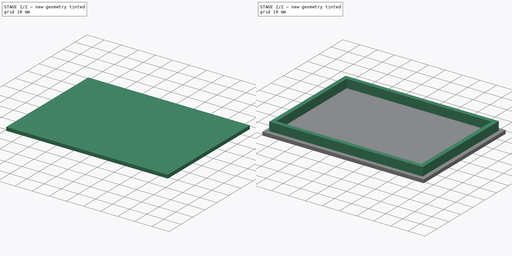
[diagram: build sequence overview — one tinted view per stage of 2, left to right]
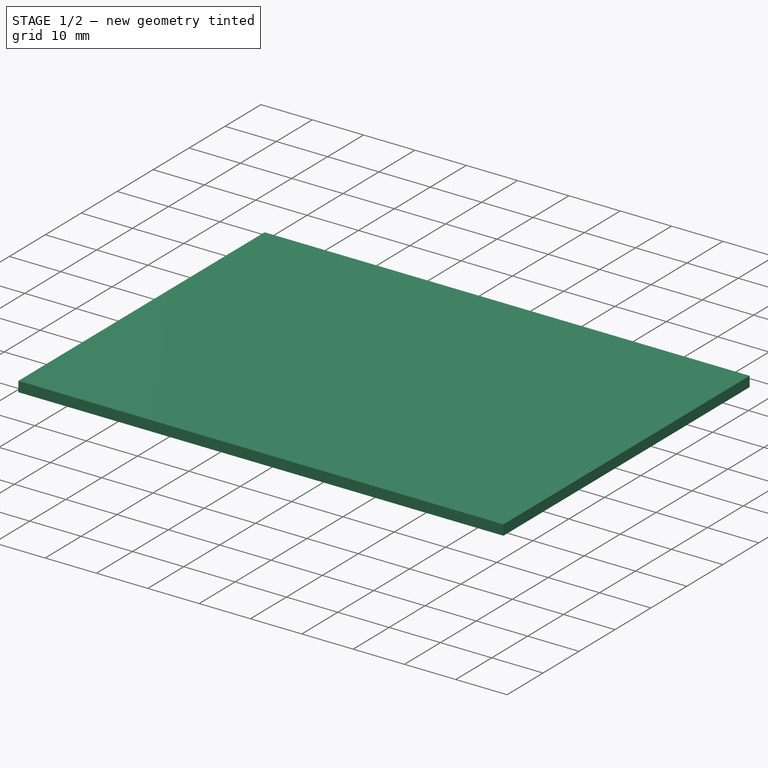
[diagram: stage 1 of 2 — iso view after this stage's code; geometry added in this stage tinted green]
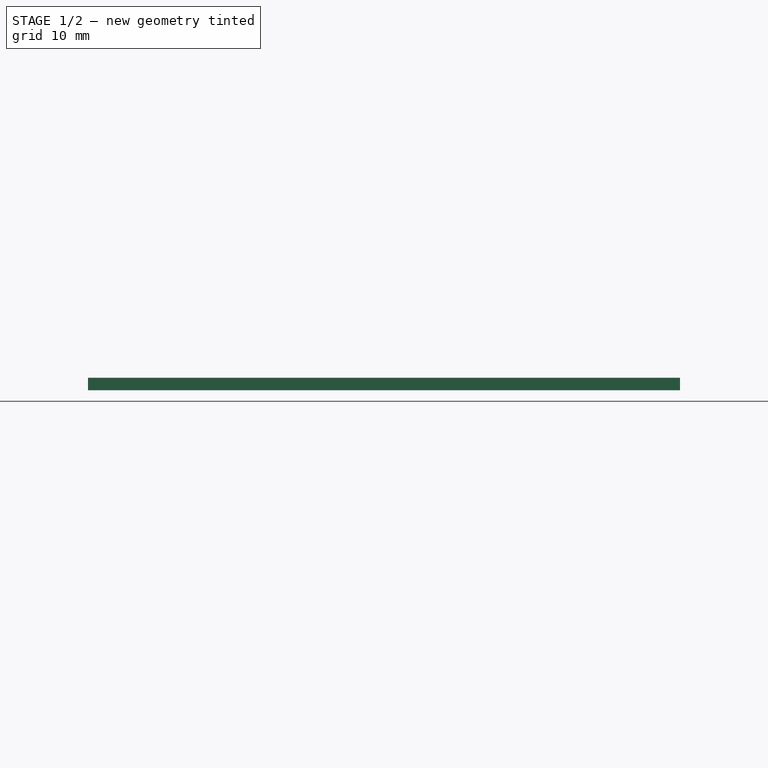
[diagram: stage 1 of 2 — front view after this stage's code; geometry added in this stage tinted green]
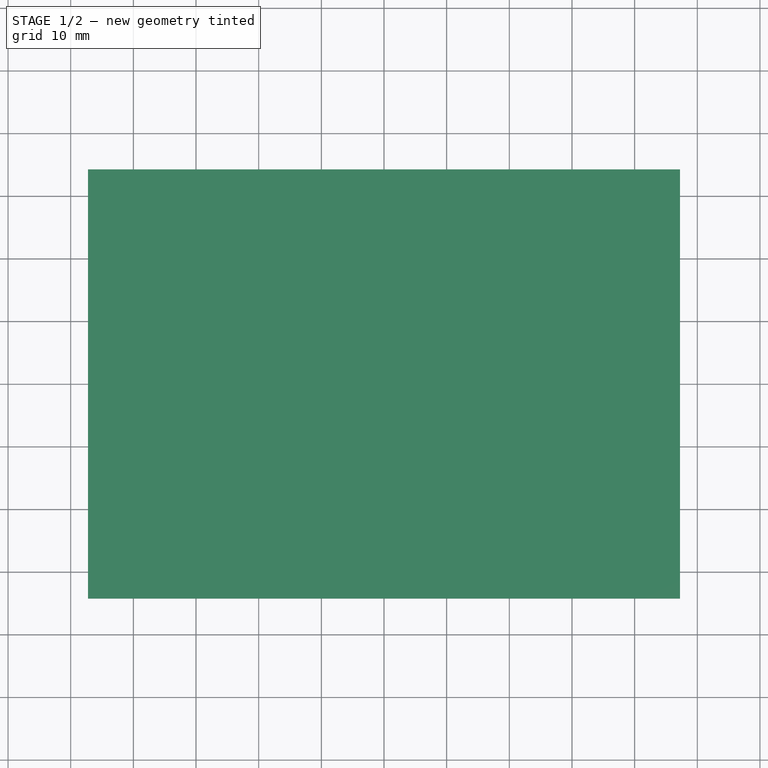
[diagram: stage 1 of 2 — top view after this stage's code; geometry added in this stage tinted green]
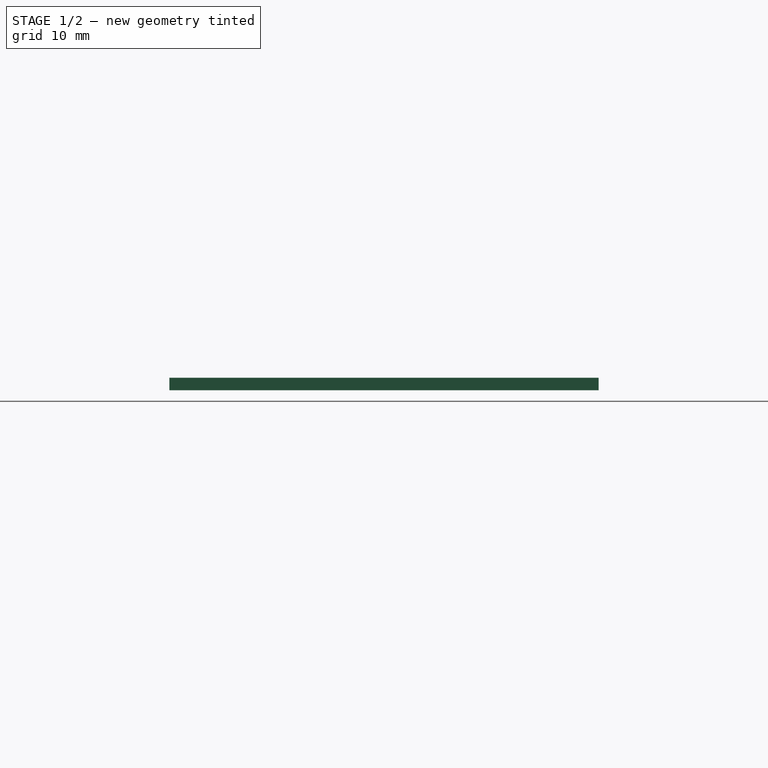
[diagram: stage 1 of 2 — right view after this stage's code; geometry added in this stage tinted green]
FCSTD DOCUMENT  (FreeCAD 0.19R24267 +99 (Git))
Label: V3-lid
License: All rights reserved
LicenseURL: http://en.wikipedia.org/wiki/All_rights_reserved
objects: Sketcher::SketchObject×2, PartDesign::Pad×2, PartDesign::Body×1
note: 7 computed .brp shape members not serialized (recipe doc carries the construction recipe); baked Part::Feature solids carry a one-line shape summary decoded from their .brp

FEATURE [Sketcher::SketchObject] Sketch  label="base_plate"
  FullyConstrained = true
  MapMode = 5
  Support = -> [XY_Plane]
  sketch-geometry (4):
    g0: LineSegment StartX=-47.25 StartY=34.25 StartZ=0 EndX=47.25 EndY=34.25 EndZ=0
    g1: LineSegment StartX=47.25 StartY=34.25 StartZ=0 EndX=47.25 EndY=-34.25 EndZ=0
    g2: LineSegment StartX=47.25 StartY=-34.25 StartZ=0 EndX=-47.25 EndY=-34.25 EndZ=0
    g3: LineSegment StartX=-47.25 StartY=-34.25 StartZ=0 EndX=-47.25 EndY=34.25 EndZ=0
  constraints (10):
    c: Coincident(g0,g1)
    c: Coincident(g1,g2)
    c: Coincident(g2,g3)
    c: Coincident(g3,g0)
    c: Horizontal(g2)
    c: Vertical(g1)
    c: Symmetric(g0,g2,g-1)
    c: Symmetric(g0,g0,g-2)
    c: DistanceX(g0,g0) = 94.5
    c: DistanceY(g3,g3) = 68.5
FEATURE [PartDesign::Pad] Pad
  Direction = (1,1,1)
  Length = 2
  Length2 = 100
  Profile = -> Sketch
  Type = 0
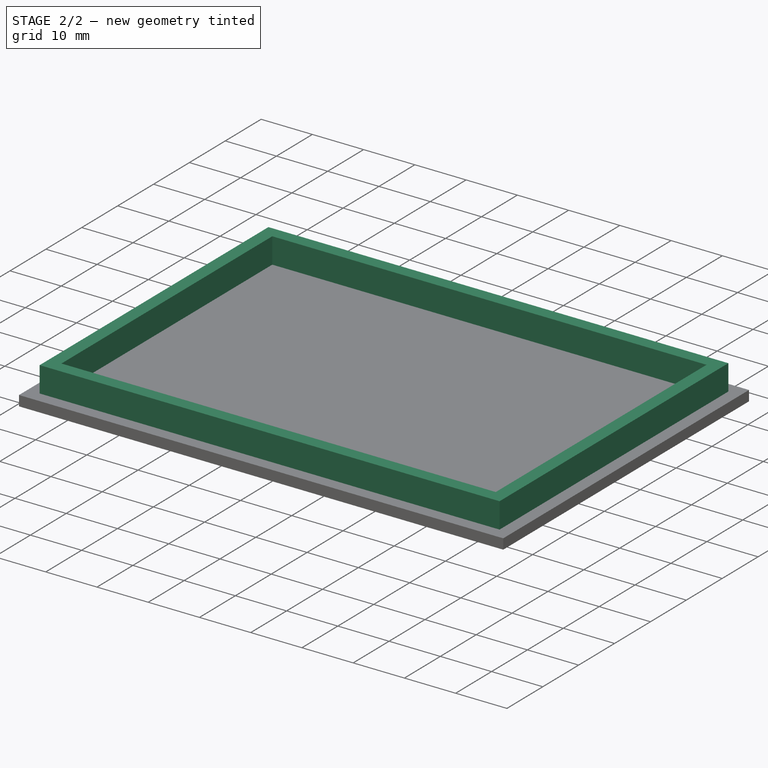
[diagram: stage 2 of 2 — iso view after this stage's code; geometry added in this stage tinted green]
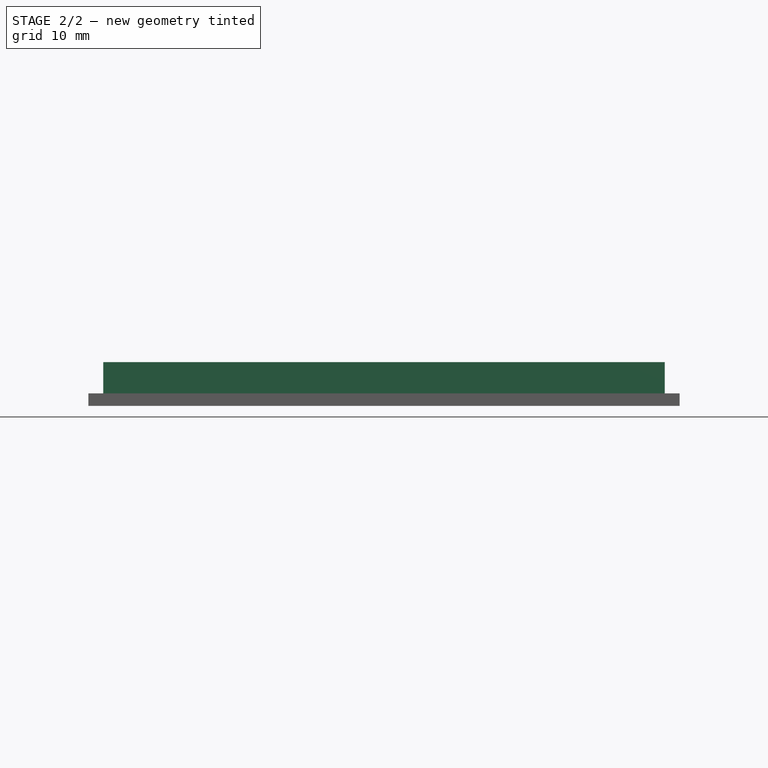
[diagram: stage 2 of 2 — front view after this stage's code; geometry added in this stage tinted green]
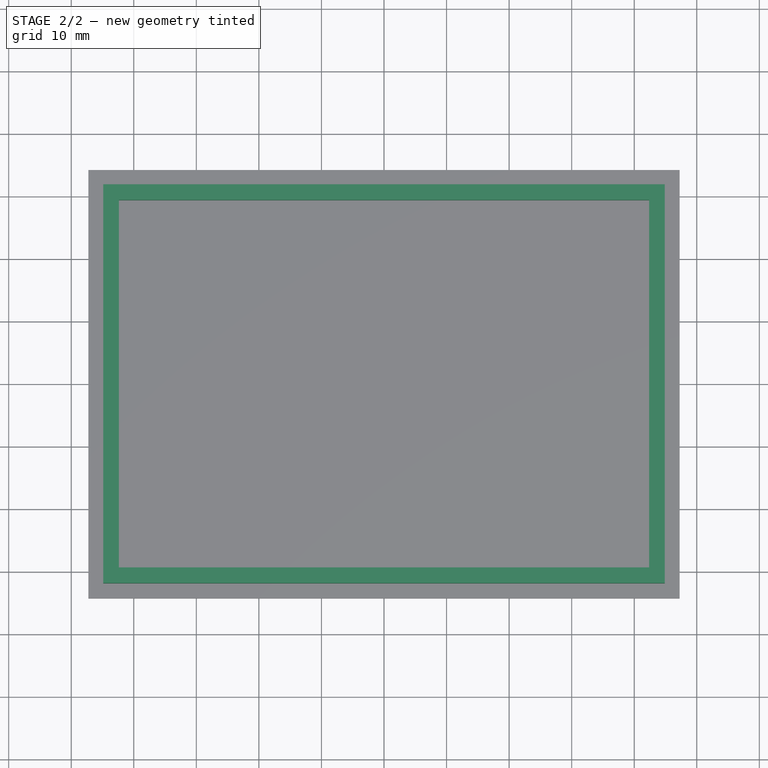
[diagram: stage 2 of 2 — top view after this stage's code; geometry added in this stage tinted green]
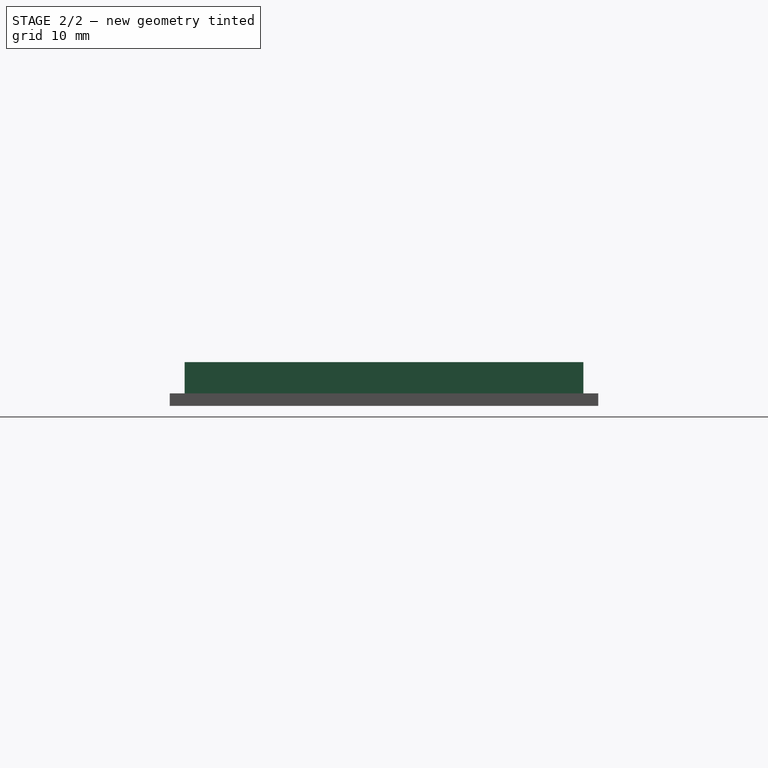
[diagram: stage 2 of 2 — right view after this stage's code; geometry added in this stage tinted green]
FEATURE [Sketcher::SketchObject] Sketch001  label="locking_grove"
  FullyConstrained = true
  MapMode = 5
  Placement = pos=(0,0,2) rot=(0,0,1;0rad)
  Support = -> [Pad]
  sketch-geometry (8):
    g0: LineSegment StartX=-44.875 StartY=31.875 StartZ=0 EndX=44.875 EndY=31.875 EndZ=0
    g1: LineSegment StartX=44.875 StartY=31.875 StartZ=0 EndX=44.875 EndY=-31.875 EndZ=0
    g2: LineSegment StartX=44.875 StartY=-31.875 StartZ=0 EndX=-44.875 EndY=-31.875 EndZ=0
    g3: LineSegment StartX=-44.875 StartY=-31.875 StartZ=0 EndX=-44.875 EndY=31.875 EndZ=0
    g4: LineSegment StartX=-42.375 StartY=29.375 StartZ=0 EndX=42.375 EndY=29.375 EndZ=0
    g5: LineSegment StartX=42.375 StartY=29.375 StartZ=0 EndX=42.375 EndY=-29.375 EndZ=0
    g6: LineSegment StartX=42.375 StartY=-29.375 StartZ=0 EndX=-42.375 EndY=-29.375 EndZ=0
    g7: LineSegment StartX=-42.375 StartY=-29.375 StartZ=0 EndX=-42.375 EndY=29.375 EndZ=0
  constraints (20):
    c: Coincident(g0,g1)
    c: Coincident(g1,g2)
    c: Coincident(g2,g3)
    c: Coincident(g3,g0)
    c: Horizontal(g2)
    c: Vertical(g1)
    c: Coincident(g4,g5)
    c: Coincident(g5,g6)
    c: Coincident(g6,g7)
    c: Coincident(g7,g4)
    c: Horizontal(g6)
    c: Vertical(g5)
    c: DistanceX(g0,g0) = 89.75
    c: DistanceY(g3,g3) = 63.75
    c: Symmetric(g0,g0,g-2)
    c: Symmetric(g0,g2,g-1)
    c: DistanceX(g0,g4) = 2.5
    c: DistanceY(g4,g0) = 2.5
    c: Symmetric(g4,g4,g-2)
    c: Symmetric(g4,g6,g-1)
FEATURE [PartDesign::Pad] Pad001
  BaseFeature = -> Pad
  Direction = (1,1,1)
  Length = 5
  Length2 = 100
  Profile = -> Sketch001
  Type = 0
FEATURE [PartDesign::Body] Body
  Group = -> [Sketch,Pad,Sketch001,Pad001]
  Origin = -> Origin
  Tip = -> Pad001
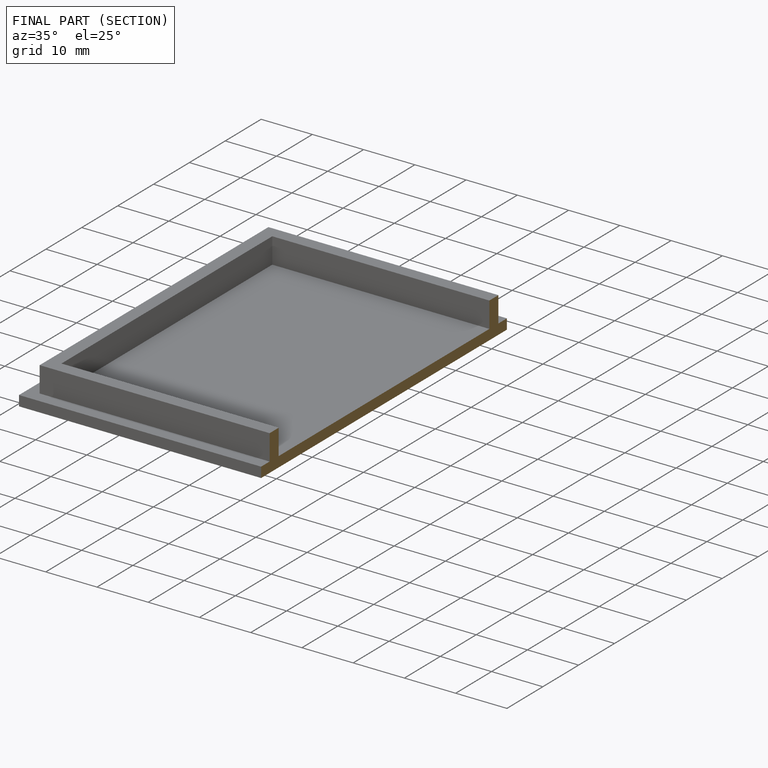
[diagram: finished part — half-section view (interior)]
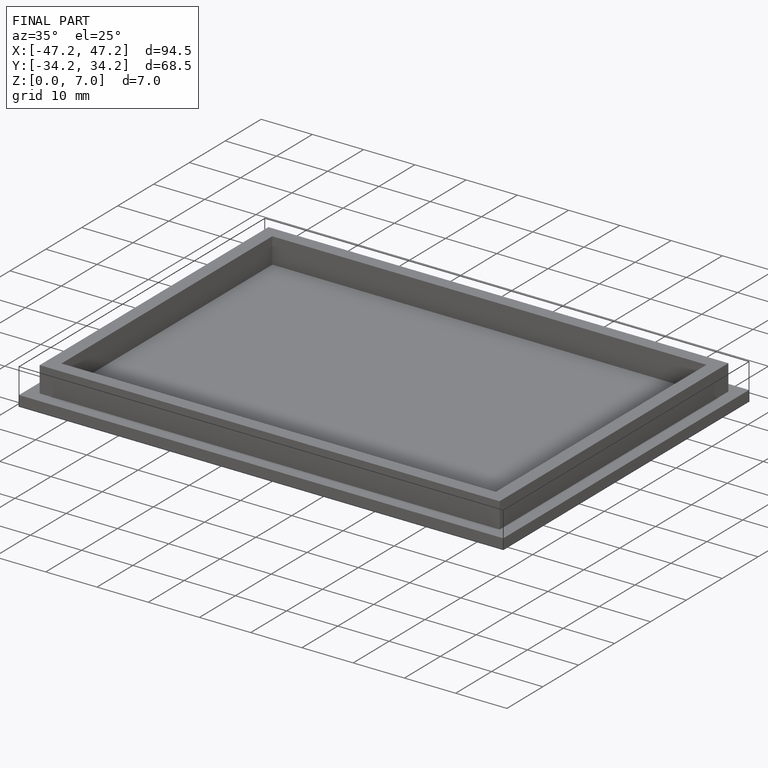
[diagram: finished part — iso view with bounding-box wireframe]
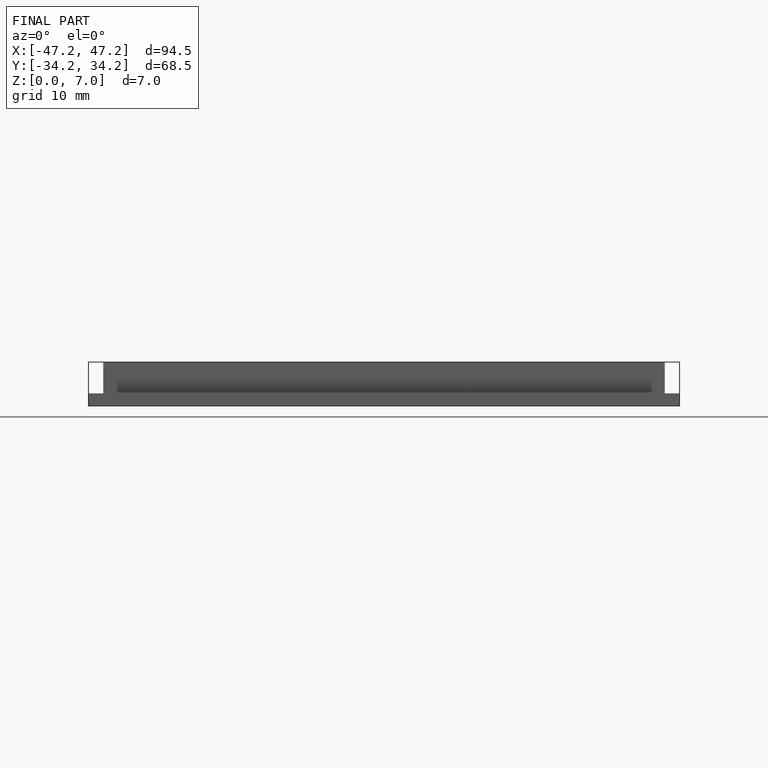
[diagram: finished part — front view with bounding-box wireframe]
